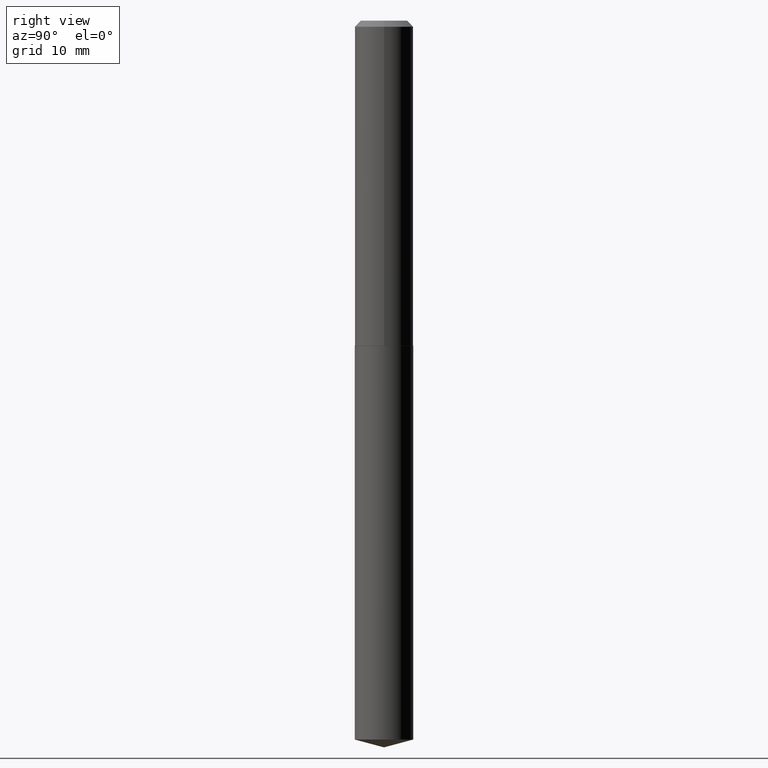
[diagram: clean part render]
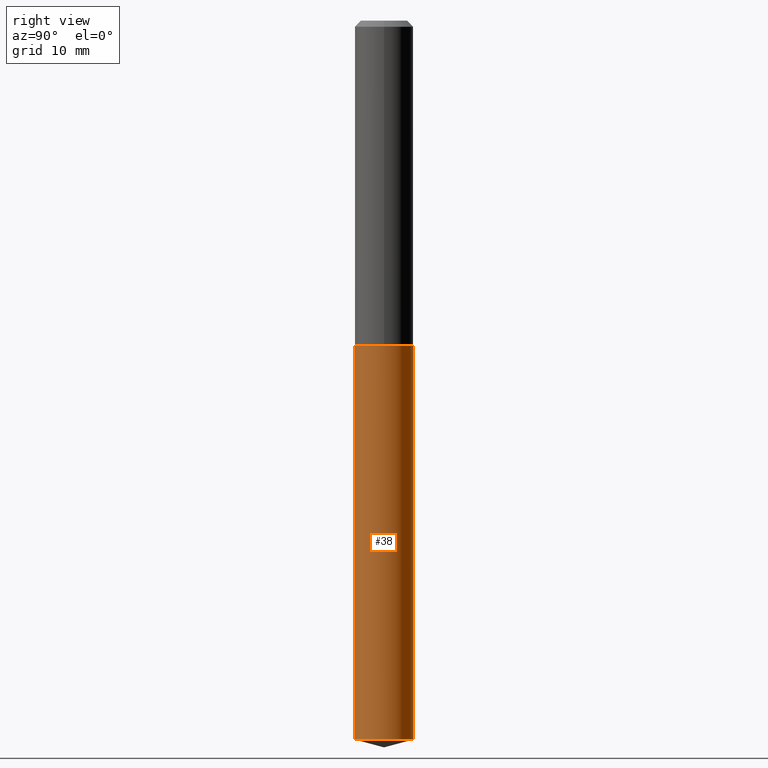
[diagram: same view with one face highlighted and labeled with its STEP entity id]
A machine part, right view. The second image highlights one B-rep face of the part: STEP entity #38.
In plain terms, the highlighted cylindrical surface (edge-blend (fillet) strip) has radius 3.8354 mm, axis along (-0, 0, 1).
Its self-contained STEP definition (entity closure, byte-faithful):
#5 = ORIENTED_EDGE ( 'NONE', *, *, #8, .F. ) ;
#8 = EDGE_CURVE ( 'NONE', #70, #251, #219, .T. ) ;
#20 = CYLINDRICAL_SURFACE ( 'NONE', #334, 0.1509999999999999953 ) ;
#22 = CIRCLE ( 'NONE', #122, 0.1509999999999999953 ) ;
#31 = DIRECTION ( 'NONE',  ( -6.982962677686265133E-15, -1.000000000000000000, 3.618341713462600054E-15 ) ) ;
#38 = ADVANCED_FACE ( 'NONE', ( #79 ), #20, .T. ) ;
#50 = DIRECTION ( 'NONE',  ( -2.445535815285872767E-29, 3.491385377996970699E-15, 1.000000000000000000 ) ) ;
#56 = CARTESIAN_POINT ( 'NONE',  ( 4.101051187972474781E-29, -5.855214205239955684E-15, -1.677000000000000268 ) ) ;
#61 = DIRECTION ( 'NONE',  ( -2.445535815285872487E-29, 3.491385377996970699E-15, 1.000000000000000000 ) ) ;
#62 = VERTEX_POINT ( 'NONE', #138 ) ;
#70 = VERTEX_POINT ( 'NONE', #169 ) ;
#71 = DIRECTION ( 'NONE',  ( -2.445535815285872767E-29, 3.491385377996970699E-15, 1.000000000000000000 ) ) ;
#79 = FACE_OUTER_BOUND ( 'NONE', #282, .T. ) ;
#80 = CARTESIAN_POINT ( 'NONE',  ( 1.072919530997842164E-15, 0.1509999999999941389, -1.677000000000000712 ) ) ;
#82 = DIRECTION ( 'NONE',  ( -2.445535815285872487E-29, 3.491385377996970699E-15, 1.000000000000000000 ) ) ;
#85 = VECTOR ( 'NONE', #71, 39.37007874015748143 ) ;
#88 = EDGE_CURVE ( 'NONE', #62, #164, #358, .T. ) ;
#122 = AXIS2_PLACEMENT_3D ( 'NONE', #56, #305, #238 ) ;
#138 = CARTESIAN_POINT ( 'NONE',  ( 1.072919530997841769E-15, 0.1509999999999870335, -3.709539671942902128 ) ) ;
#164 = VERTEX_POINT ( 'NONE', #80 ) ;
#169 = CARTESIAN_POINT ( 'NONE',  ( -1.054427364330535302E-15, -0.1510000000000129294, -3.709539671942900796 ) ) ;
#195 = ORIENTED_EDGE ( 'NONE', *, *, #88, .T. ) ;
#212 = CARTESIAN_POINT ( 'NONE',  ( 9.071699751698236778E-29, -1.295159349606016009E-14, -3.709539671942901684 ) ) ;
#219 = LINE ( 'NONE', #343, #85 ) ;
#235 = CARTESIAN_POINT ( 'NONE',  ( 4.101051187972474781E-29, -5.855214205239955684E-15, -1.677000000000000268 ) ) ;
#238 = DIRECTION ( 'NONE',  ( -6.982962677686265133E-15, -1.000000000000000000, 3.618341713462600054E-15 ) ) ;
#245 = EDGE_CURVE ( 'NONE', #251, #164, #22, .T. ) ;
#248 = ORIENTED_EDGE ( 'NONE', *, *, #245, .F. ) ;
#251 = VERTEX_POINT ( 'NONE', #363 ) ;
#257 = CARTESIAN_POINT ( 'NONE',  ( 1.072919530997792071E-15, 0.1509999999999941389, -1.677000000000000712 ) ) ;
#268 = CIRCLE ( 'NONE', #335, 0.1509999999999999953 ) ;
#282 = EDGE_LOOP ( 'NONE', ( #368, #195, #248, #5 ) ) ;
#305 = DIRECTION ( 'NONE',  ( -2.445535815285872487E-29, 3.491385377996970699E-15, 1.000000000000000000 ) ) ;
#334 = AXIS2_PLACEMENT_3D ( 'NONE', #235, #82, #352 ) ;
#335 = AXIS2_PLACEMENT_3D ( 'NONE', #212, #61, #31 ) ;
#343 = CARTESIAN_POINT ( 'NONE',  ( -1.054427364330585000E-15, -0.1510000000000058518, -1.676999999999999602 ) ) ;
#345 = EDGE_CURVE ( 'NONE', #70, #62, #268, .T. ) ;
#346 = VECTOR ( 'NONE', #50, 39.37007874015748143 ) ;
#352 = DIRECTION ( 'NONE',  ( -6.982962677686265133E-15, -1.000000000000000000, 3.618341713462600054E-15 ) ) ;
#358 = LINE ( 'NONE', #257, #346 ) ;
#363 = CARTESIAN_POINT ( 'NONE',  ( -1.054427364330585000E-15, -0.1510000000000058518, -1.676999999999999602 ) ) ;
#368 = ORIENTED_EDGE ( 'NONE', *, *, #345, .T. ) ;